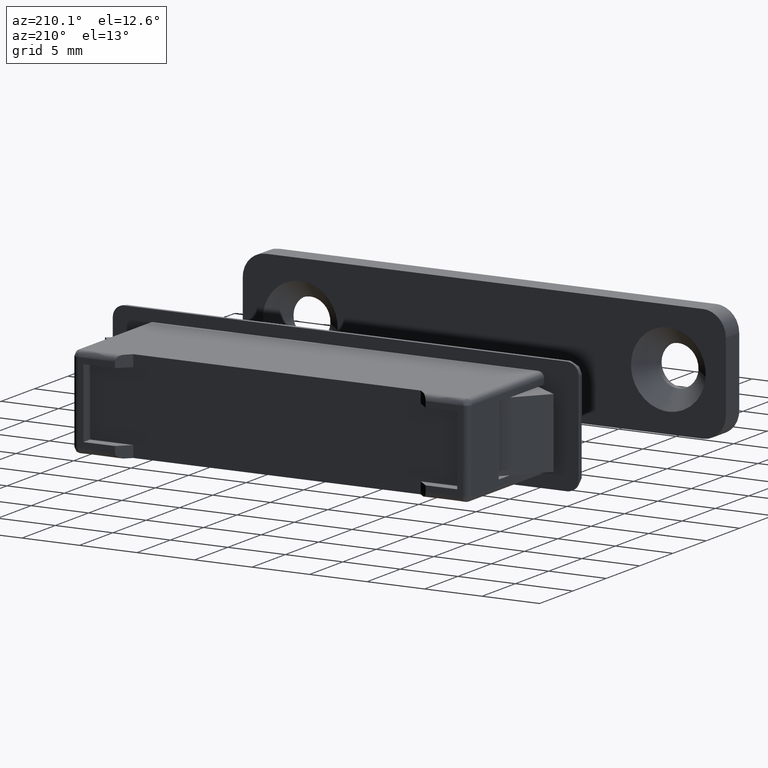
[diagram: clean part render]
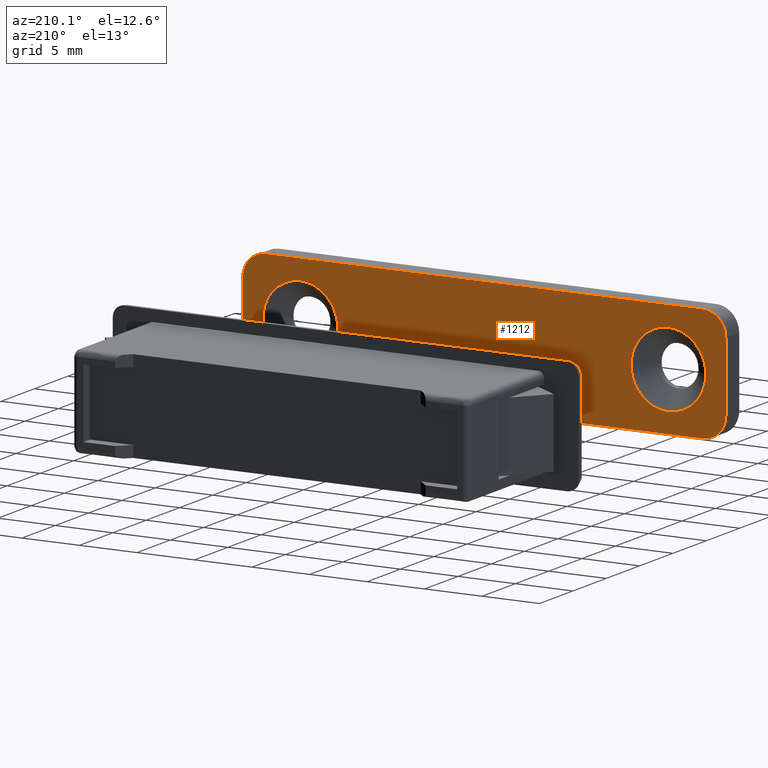
[diagram: same view with one face highlighted and labeled with its STEP entity id]
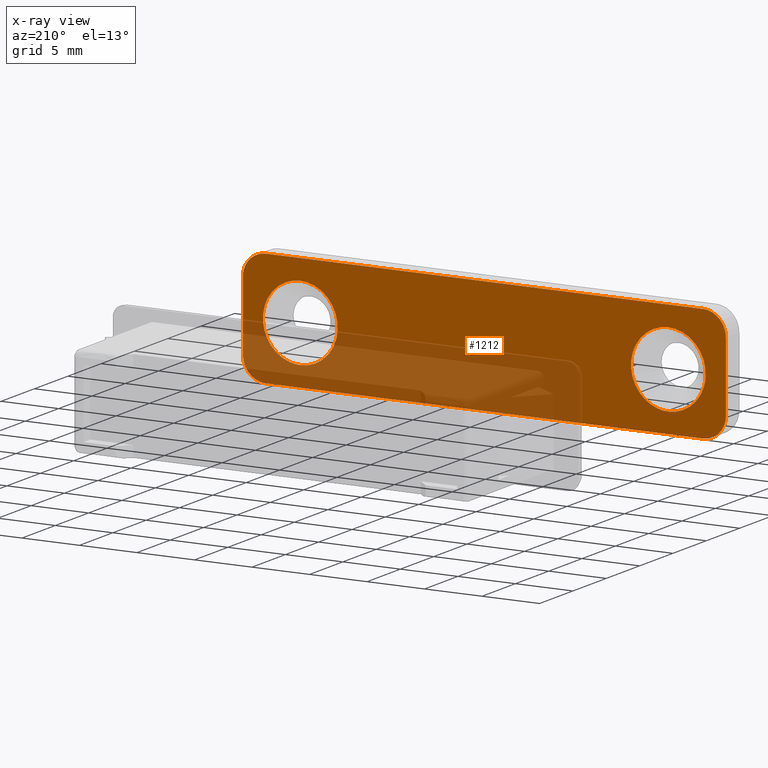
[diagram: x-ray of the same camera — body ghosted, the highlighted face saturated]
A machine part, auxiliary view. The second image highlights one B-rep face of the part: STEP entity #1212.
The next image is the same camera in x-ray: the body ghosted, the highlighted face saturated — about 35% of this face is hidden behind the body in this view.
In plain terms, the highlighted face is a freeform B-spline surface patch.
Its self-contained STEP definition (entity closure, byte-faithful):
#565=CARTESIAN_POINT('',(19.227280988503470,-34.095919398697220,-0.383611266183548));
#566=VERTEX_POINT('',#565);
#572=CARTESIAN_POINT('',(16.0,-34.095919398666652,3.250000028015418));
#573=VERTEX_POINT('',#572);
#574=CARTESIAN_POINT('',(19.227280988503470,-34.095919398697220,-0.383611266183548));
#575=CARTESIAN_POINT('',(19.250000028015421,-34.095919398666659,-0.192478390769116));
#576=CARTESIAN_POINT('',(19.250000028015421,-34.095919398666652,2.661985E-015));
#577=CARTESIAN_POINT('',(19.250000028015418,-34.095919398666652,3.250000028015418));
#578=CARTESIAN_POINT('',(16.0,-34.095919398666652,3.250000028015418));
#586=(BOUNDED_CURVE()B_SPLINE_CURVE(2,(#574,#575,#576,#577,#578),.UNSPECIFIED.,.F.,.U.)B_SPLINE_CURVE_WITH_KNOTS((3,2,3),(0.229562473490644,0.250000000000000,0.500000000000000),.UNSPECIFIED.)CURVE()GEOMETRIC_REPRESENTATION_ITEM()RATIONAL_B_SPLINE_CURVE((0.956026754138885,0.976055948304358,1.0,0.707106781186547,1.0))REPRESENTATION_ITEM(''));
#587=EDGE_CURVE('',#566,#573,#586,.T.);
#589=CARTESIAN_POINT('',(12.756061877148399,-34.095919398699053,0.198407755445187));
#590=VERTEX_POINT('',#589);
#591=CARTESIAN_POINT('',(16.0,-34.095919398666652,3.250000028015418));
#592=CARTESIAN_POINT('',(12.942705256664169,-34.095919398666652,3.250000028015418));
#593=CARTESIAN_POINT('',(12.756061877148399,-34.095919398699046,0.198407755445187));
#601=(BOUNDED_CURVE()B_SPLINE_CURVE(2,(#591,#592,#593),.UNSPECIFIED.,.F.,.U.)B_SPLINE_CURVE_WITH_KNOTS((3,3),(0.500000000000000,0.739332962215946),.UNSPECIFIED.)CURVE()GEOMETRIC_REPRESENTATION_ITEM()RATIONAL_B_SPLINE_CURVE((1.0,0.719603993313653,0.976072041617430))REPRESENTATION_ITEM(''));
#602=EDGE_CURVE('',#573,#590,#601,.T.);
#635=CARTESIAN_POINT('',(16.0,-34.095919398666652,-3.250000028015413));
#636=VERTEX_POINT('',#635);
#637=CARTESIAN_POINT('',(12.756061877148394,-34.095919398699039,0.198407755445187));
#638=CARTESIAN_POINT('',(12.749999971984590,-34.095919398666659,0.099296481821672));
#639=CARTESIAN_POINT('',(12.749999971984581,-34.095919398666652,2.661985E-015));
#640=CARTESIAN_POINT('',(12.749999971984584,-34.095919398666652,-3.250000028015412));
#641=CARTESIAN_POINT('',(16.0,-34.095919398666652,-3.250000028015413));
#649=(BOUNDED_CURVE()B_SPLINE_CURVE(2,(#637,#638,#639,#640,#641),.UNSPECIFIED.,.F.,.U.)B_SPLINE_CURVE_WITH_KNOTS((3,2,3),(0.739332962215945,0.750000000000000,1.0),.UNSPECIFIED.)CURVE()GEOMETRIC_REPRESENTATION_ITEM()RATIONAL_B_SPLINE_CURVE((0.976072041617429,0.987502787872894,1.0,0.707106781186547,1.0))REPRESENTATION_ITEM(''));
#650=EDGE_CURVE('',#590,#636,#649,.T.);
#652=CARTESIAN_POINT('',(16.0,-34.095919398666652,-3.250000028015413));
#653=CARTESIAN_POINT('',(18.886567233794519,-34.095919398666652,-3.250000028015413));
#654=CARTESIAN_POINT('',(19.227280988503470,-34.095919398697220,-0.383611266183548));
#662=(BOUNDED_CURVE()B_SPLINE_CURVE(2,(#652,#653,#654),.UNSPECIFIED.,.F.,.U.)B_SPLINE_CURVE_WITH_KNOTS((3,3),(0.0,0.229562473490644),.UNSPECIFIED.)CURVE()GEOMETRIC_REPRESENTATION_ITEM()RATIONAL_B_SPLINE_CURVE((1.0,0.731050832882189,0.956026754138885))REPRESENTATION_ITEM(''));
#663=EDGE_CURVE('',#636,#566,#662,.T.);
#893=CARTESIAN_POINT('',(-12.772719011496530,-34.095919398697220,-0.383611266183548));
#894=VERTEX_POINT('',#893);
#900=CARTESIAN_POINT('',(-16.0,-34.095919398666652,3.250000028015418));
#901=VERTEX_POINT('',#900);
#902=CARTESIAN_POINT('',(-12.772719011496527,-34.095919398697220,-0.383611266183548));
#903=CARTESIAN_POINT('',(-12.749999971984581,-34.095919398666652,-0.192478390769116));
#904=CARTESIAN_POINT('',(-12.749999971984581,-34.095919398666652,2.661985E-015));
#905=CARTESIAN_POINT('',(-12.749999971984584,-34.095919398666652,3.250000028015418));
#906=CARTESIAN_POINT('',(-16.0,-34.095919398666652,3.250000028015418));
#914=(BOUNDED_CURVE()B_SPLINE_CURVE(2,(#902,#903,#904,#905,#906),.UNSPECIFIED.,.F.,.U.)B_SPLINE_CURVE_WITH_KNOTS((3,2,3),(0.229562473490644,0.250000000000000,0.500000000000000),.UNSPECIFIED.)CURVE()GEOMETRIC_REPRESENTATION_ITEM()RATIONAL_B_SPLINE_CURVE((0.956026754138885,0.976055948304358,1.0,0.707106781186547,1.0))REPRESENTATION_ITEM(''));
#915=EDGE_CURVE('',#894,#901,#914,.T.);
#917=CARTESIAN_POINT('',(-19.243938122851599,-34.095919398699053,0.198407755445187));
#918=VERTEX_POINT('',#917);
#919=CARTESIAN_POINT('',(-16.0,-34.095919398666652,3.250000028015418));
#920=CARTESIAN_POINT('',(-19.057294743335827,-34.095919398666652,3.250000028015418));
#921=CARTESIAN_POINT('',(-19.243938122851610,-34.095919398699046,0.198407755445187));
#929=(BOUNDED_CURVE()B_SPLINE_CURVE(2,(#919,#920,#921),.UNSPECIFIED.,.F.,.U.)B_SPLINE_CURVE_WITH_KNOTS((3,3),(0.500000000000000,0.739332962215946),.UNSPECIFIED.)CURVE()GEOMETRIC_REPRESENTATION_ITEM()RATIONAL_B_SPLINE_CURVE((1.0,0.719603993313653,0.976072041617430))REPRESENTATION_ITEM(''));
#930=EDGE_CURVE('',#901,#918,#929,.T.);
#963=CARTESIAN_POINT('',(-16.0,-34.095919398666652,-3.250000028015413));
#964=VERTEX_POINT('',#963);
#965=CARTESIAN_POINT('',(-19.243938122851599,-34.095919398699039,0.198407755445187));
#966=CARTESIAN_POINT('',(-19.250000028015418,-34.095919398666659,0.099296481821672));
#967=CARTESIAN_POINT('',(-19.250000028015421,-34.095919398666652,2.661985E-015));
#968=CARTESIAN_POINT('',(-19.250000028015418,-34.095919398666652,-3.250000028015412));
#969=CARTESIAN_POINT('',(-16.0,-34.095919398666652,-3.250000028015413));
#977=(BOUNDED_CURVE()B_SPLINE_CURVE(2,(#965,#966,#967,#968,#969),.UNSPECIFIED.,.F.,.U.)B_SPLINE_CURVE_WITH_KNOTS((3,2,3),(0.739332962215945,0.750000000000000,1.0),.UNSPECIFIED.)CURVE()GEOMETRIC_REPRESENTATION_ITEM()RATIONAL_B_SPLINE_CURVE((0.976072041617429,0.987502787872894,1.0,0.707106781186547,1.0))REPRESENTATION_ITEM(''));
#978=EDGE_CURVE('',#918,#964,#977,.T.);
#980=CARTESIAN_POINT('',(-16.0,-34.095919398666652,-3.250000028015413));
#981=CARTESIAN_POINT('',(-13.113432766205483,-34.095919398666652,-3.250000028015413));
#982=CARTESIAN_POINT('',(-12.772719011496527,-34.095919398697220,-0.383611266183548));
#990=(BOUNDED_CURVE()B_SPLINE_CURVE(2,(#980,#981,#982),.UNSPECIFIED.,.F.,.U.)B_SPLINE_CURVE_WITH_KNOTS((3,3),(0.0,0.229562473490644),.UNSPECIFIED.)CURVE()GEOMETRIC_REPRESENTATION_ITEM()RATIONAL_B_SPLINE_CURVE((1.0,0.731050832882189,0.956026754138885))REPRESENTATION_ITEM(''));
#991=EDGE_CURVE('',#964,#894,#990,.T.);
#1105=CARTESIAN_POINT('',(-23.097899918595861,-34.095919398666652,5.499499980618060));
#1106=CARTESIAN_POINT('',(23.097901045123638,-34.095919398666652,5.499499980618060));
#1107=CARTESIAN_POINT('',(-23.097899918595861,-34.095919398666652,-5.499500248838961));
#1108=CARTESIAN_POINT('',(23.097901045123638,-34.095919398666652,-5.499500248838961));
#1109=B_SPLINE_SURFACE_WITH_KNOTS('',1,1,((#1105,#1107),(#1106,#1108)),.UNSPECIFIED.,.F.,.F.,.U.,(2,2),(2,2),(0.0,46.195800963719492),(0.0,10.999000229457019),.UNSPECIFIED.);
#1110=CARTESIAN_POINT('',(21.0,-34.095919398666652,-3.0));
#1111=VERTEX_POINT('',#1110);
#1112=CARTESIAN_POINT('',(21.0,-34.095919398666652,3.0));
#1113=VERTEX_POINT('',#1112);
#1114=CARTESIAN_POINT('',(21.0,-34.095919398666652,-3.0));
#1115=CARTESIAN_POINT('',(21.0,-34.095919398666652,3.0));
#1116=QUASI_UNIFORM_CURVE('',1,(#1114,#1115),.UNSPECIFIED.,.F.,.U.);
#1117=EDGE_CURVE('',#1111,#1113,#1116,.T.);
#1118=ORIENTED_EDGE('',*,*,#1117,.T.);
#1119=CARTESIAN_POINT('',(19.000000383972449,-34.095919398666652,5.0));
#1120=VERTEX_POINT('',#1119);
#1121=CARTESIAN_POINT('',(21.0,-34.095919398666652,3.0));
#1122=CARTESIAN_POINT('',(21.000000000000004,-34.095919398666652,4.999999616027586));
#1123=CARTESIAN_POINT('',(19.000000383972449,-34.095919398666652,4.999999999999963));
#1131=(BOUNDED_CURVE()B_SPLINE_CURVE(2,(#1121,#1122,#1123),.UNSPECIFIED.,.F.,.U.)CURVE()GEOMETRIC_REPRESENTATION_ITEM()QUASI_UNIFORM_CURVE()RATIONAL_B_SPLINE_CURVE((1.0,0.707106849063925,1.0))REPRESENTATION_ITEM(''));
#1132=EDGE_CURVE('',#1113,#1120,#1131,.T.);
#1133=ORIENTED_EDGE('',*,*,#1132,.T.);
#1134=CARTESIAN_POINT('',(-19.0,-34.095919398666652,5.0));
#1135=VERTEX_POINT('',#1134);
#1136=CARTESIAN_POINT('',(19.000000383972449,-34.095919398666652,5.0));
#1137=CARTESIAN_POINT('',(-19.0,-34.095919398666652,5.0));
#1138=QUASI_UNIFORM_CURVE('',1,(#1136,#1137),.UNSPECIFIED.,.F.,.U.);
#1139=EDGE_CURVE('',#1120,#1135,#1138,.T.);
#1140=ORIENTED_EDGE('',*,*,#1139,.T.);
#1141=CARTESIAN_POINT('',(-21.0,-34.095919398666652,3.000000767944870));
#1142=VERTEX_POINT('',#1141);
#1143=CARTESIAN_POINT('',(-19.0,-34.095919398666652,5.0));
#1144=CARTESIAN_POINT('',(-20.999999232055270,-34.095919398666652,5.000000000000001));
#1145=CARTESIAN_POINT('',(-21.0,-34.095919398666652,3.000000767944870));
#1153=(BOUNDED_CURVE()B_SPLINE_CURVE(2,(#1143,#1144,#1145),.UNSPECIFIED.,.F.,.U.)CURVE()GEOMETRIC_REPRESENTATION_ITEM()QUASI_UNIFORM_CURVE()RATIONAL_B_SPLINE_CURVE((1.0,0.707106916941291,1.0))REPRESENTATION_ITEM(''));
#1154=EDGE_CURVE('',#1135,#1142,#1153,.T.);
#1155=ORIENTED_EDGE('',*,*,#1154,.T.);
#1156=CARTESIAN_POINT('',(-21.0,-34.095919398666652,-3.0));
#1157=VERTEX_POINT('',#1156);
#1158=CARTESIAN_POINT('',(-21.0,-34.095919398666652,3.000000767944870));
#1159=CARTESIAN_POINT('',(-21.0,-34.095919398666652,-3.0));
#1160=QUASI_UNIFORM_CURVE('',1,(#1158,#1159),.UNSPECIFIED.,.F.,.U.);
#1161=EDGE_CURVE('',#1142,#1157,#1160,.T.);
#1162=ORIENTED_EDGE('',*,*,#1161,.T.);
#1163=CARTESIAN_POINT('',(-19.000000942477801,-34.095919398666652,-4.999999999999780));
#1164=VERTEX_POINT('',#1163);
#1165=CARTESIAN_POINT('',(-21.0,-34.095919398666652,-3.0));
#1166=CARTESIAN_POINT('',(-21.0,-34.095919398666652,-4.999999057522421));
#1167=CARTESIAN_POINT('',(-19.000000942477801,-34.095919398666652,-4.999999999999778));
#1175=(BOUNDED_CURVE()B_SPLINE_CURVE(2,(#1165,#1166,#1167),.UNSPECIFIED.,.F.,.U.)CURVE()GEOMETRIC_REPRESENTATION_ITEM()QUASI_UNIFORM_CURVE()RATIONAL_B_SPLINE_CURVE((1.0,0.707106947794639,1.0))REPRESENTATION_ITEM(''));
#1176=EDGE_CURVE('',#1157,#1164,#1175,.T.);
#1177=ORIENTED_EDGE('',*,*,#1176,.T.);
#1178=CARTESIAN_POINT('',(19.0,-34.095919398666652,-5.0));
#1179=VERTEX_POINT('',#1178);
#1180=CARTESIAN_POINT('',(-19.000000942477801,-34.095919398666652,-4.999999999999780));
#1181=CARTESIAN_POINT('',(19.0,-34.095919398666652,-5.0));
#1182=QUASI_UNIFORM_CURVE('',1,(#1180,#1181),.UNSPECIFIED.,.F.,.U.);
#1183=EDGE_CURVE('',#1164,#1179,#1182,.T.);
#1184=ORIENTED_EDGE('',*,*,#1183,.T.);
#1185=CARTESIAN_POINT('',(19.0,-34.095919398666652,-5.0));
#1186=CARTESIAN_POINT('',(21.000000000000004,-34.095919398666645,-5.000000000000001));
#1187=CARTESIAN_POINT('',(21.0,-34.095919398666652,-3.0));
#1195=(BOUNDED_CURVE()B_SPLINE_CURVE(2,(#1185,#1186,#1187),.UNSPECIFIED.,.F.,.U.)CURVE()GEOMETRIC_REPRESENTATION_ITEM()QUASI_UNIFORM_CURVE()RATIONAL_B_SPLINE_CURVE((1.0,0.707106781186548,1.0))REPRESENTATION_ITEM(''));
#1196=EDGE_CURVE('',#1179,#1111,#1195,.T.);
#1197=ORIENTED_EDGE('',*,*,#1196,.T.);
#1198=EDGE_LOOP('',(#1118,#1133,#1140,#1155,#1162,#1177,#1184,#1197));
#1199=FACE_OUTER_BOUND('',#1198,.T.);
#1200=ORIENTED_EDGE('',*,*,#930,.F.);
#1201=ORIENTED_EDGE('',*,*,#915,.F.);
#1202=ORIENTED_EDGE('',*,*,#991,.F.);
#1203=ORIENTED_EDGE('',*,*,#978,.F.);
#1204=EDGE_LOOP('',(#1200,#1201,#1202,#1203));
#1205=FACE_BOUND('',#1204,.T.);
#1206=ORIENTED_EDGE('',*,*,#602,.F.);
#1207=ORIENTED_EDGE('',*,*,#587,.F.);
#1208=ORIENTED_EDGE('',*,*,#663,.F.);
#1209=ORIENTED_EDGE('',*,*,#650,.F.);
#1210=EDGE_LOOP('',(#1206,#1207,#1208,#1209));
#1211=FACE_BOUND('',#1210,.T.);
#1212=ADVANCED_FACE('',(#1199,#1205,#1211),#1109,.F.);